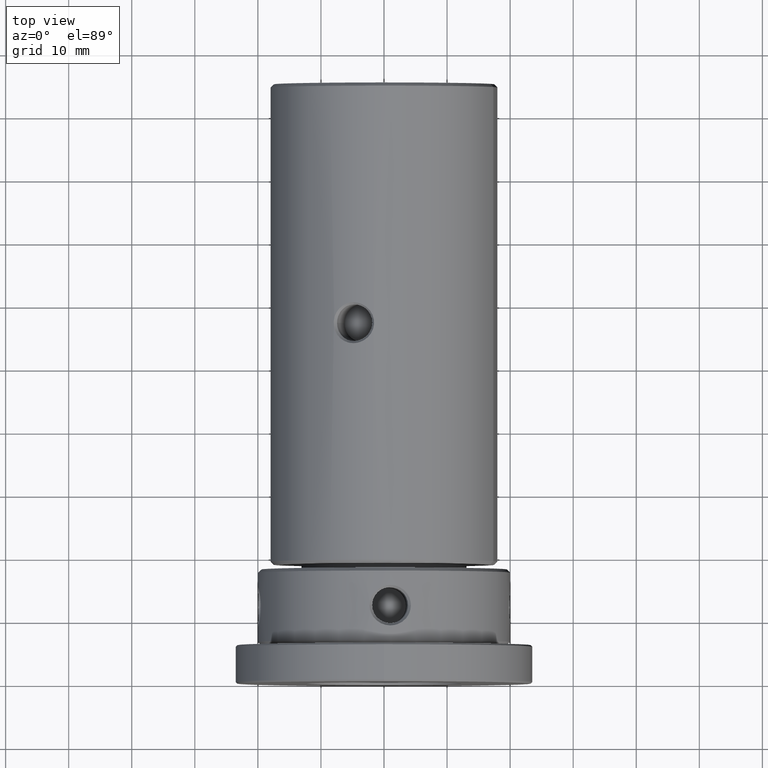
[diagram: clean part render]
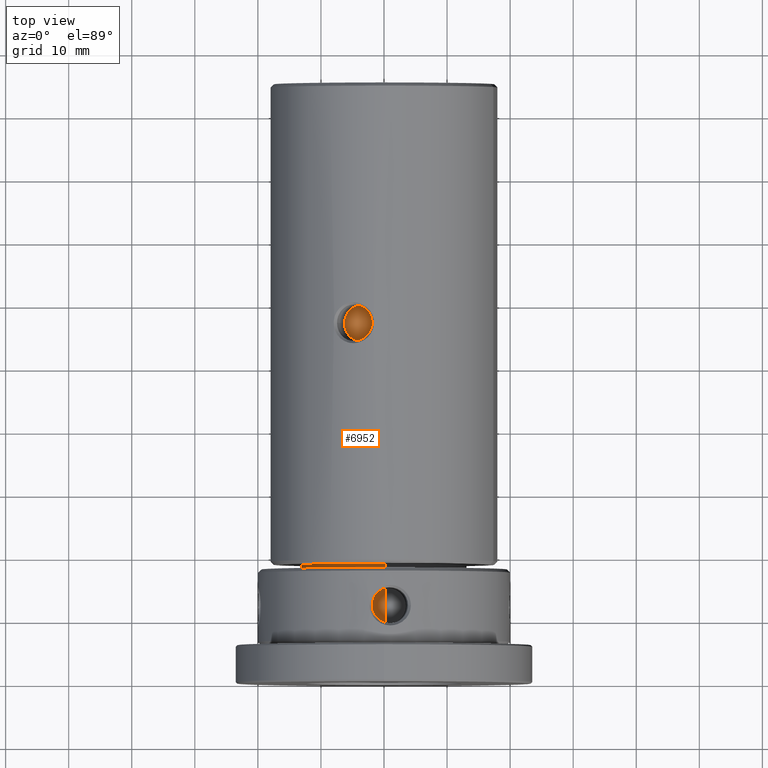
[diagram: same view with one face highlighted and labeled with its STEP entity id]
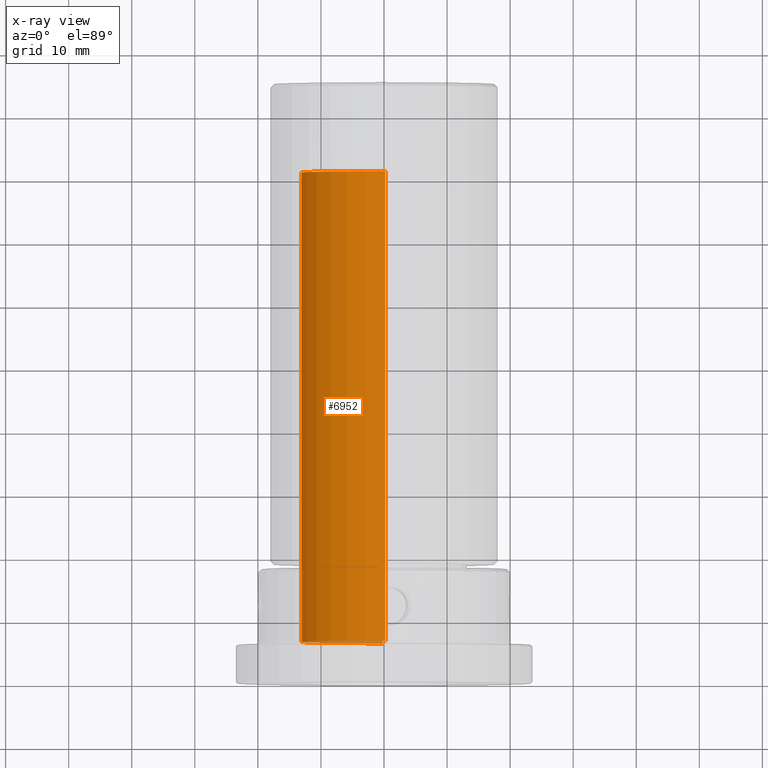
[diagram: x-ray of the same camera — body ghosted, the highlighted face saturated]
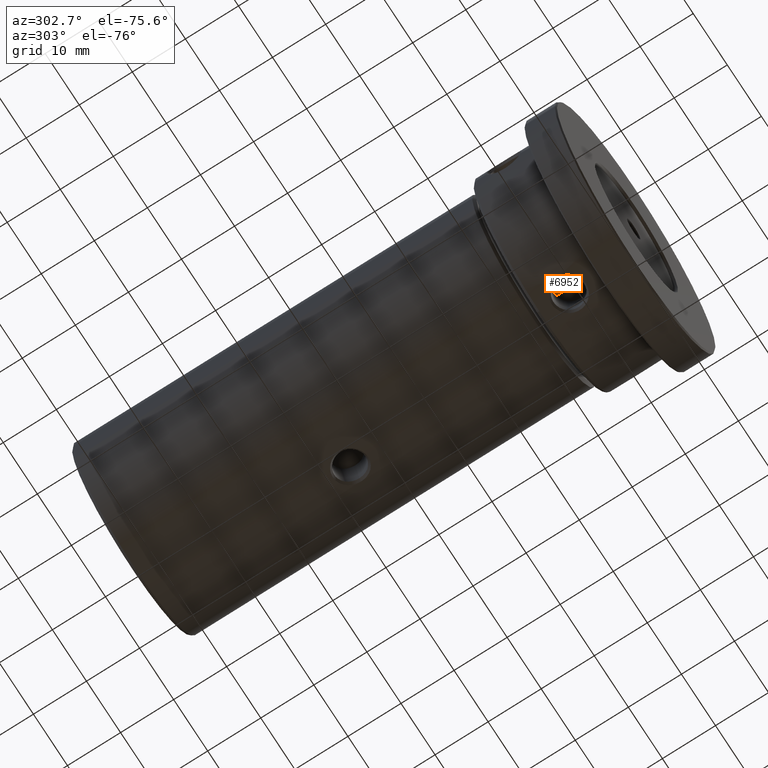
[diagram: same view with one face highlighted and labeled with its STEP entity id]
A machine part, top view. The second image highlights one B-rep face of the part: STEP entity #6952.
The next image is the same camera in x-ray: the body ghosted, the highlighted face saturated — about 1% of this face is hidden behind the body in this view.
A second angle (auxiliary view) of the same face is appended — the face is thin or edge-on in the first view.
In plain terms, the highlighted cylindrical surface (partial cylindrical patch) has radius 13.1445 mm, axis along (-0, -1, 0).
Its self-contained STEP definition (entity closure, byte-faithful):
#518 = VERTEX_POINT ( 'NONE', #12066 ) ;
#544 = DIRECTION ( 'NONE',  ( -0.000000000000000000, -1.000000000000000000, -0.000000000000000000 ) ) ;
#920 = CIRCLE ( 'NONE', #5842, 13.14450000000000074 ) ;
#1344 = VERTEX_POINT ( 'NONE', #1345 ) ;
#1345 = CARTESIAN_POINT ( 'NONE',  ( 0.000000000000000000, -37.21999999999991360, -13.14450000000000074 ) ) ;
#1471 = CYLINDRICAL_SURFACE ( 'NONE', #2619, 13.14450000000000074 ) ;
#1508 = ORIENTED_EDGE ( 'NONE', *, *, #6629, .T. ) ;
#1760 = CARTESIAN_POINT ( 'NONE',  ( 0.000000000000000000, 37.22000000000002018, -13.14450000000000074 ) ) ;
#2262 = DIRECTION ( 'NONE',  ( 0.000000000000000000, 0.000000000000000000, -1.000000000000000000 ) ) ;
#2619 = AXIS2_PLACEMENT_3D ( 'NONE', #5267, #544, #2262 ) ;
#2666 = EDGE_CURVE ( 'NONE', #1344, #518, #920, .T. ) ;
#3262 = VECTOR ( 'NONE', #7696, 1000.000000000000000 ) ;
#3693 = DIRECTION ( 'NONE',  ( -0.000000000000000000, -1.000000000000000000, -0.000000000000000000 ) ) ;
#3901 = DIRECTION ( 'NONE',  ( 0.000000000000000000, 0.000000000000000000, 1.000000000000000000 ) ) ;
#3933 = EDGE_CURVE ( 'NONE', #4786, #4567, #11489, .T. ) ;
#4567 = VERTEX_POINT ( 'NONE', #1760 ) ;
#4734 = LINE ( 'NONE', #7820, #3262 ) ;
#4786 = VERTEX_POINT ( 'NONE', #9044 ) ;
#5032 = FACE_OUTER_BOUND ( 'NONE', #9310, .T. ) ;
#5211 = EDGE_CURVE ( 'NONE', #4786, #518, #4734, .T. ) ;
#5267 = CARTESIAN_POINT ( 'NONE',  ( 0.000000000000000000, 37.71999999999999886, 0.000000000000000000 ) ) ;
#5410 = ORIENTED_EDGE ( 'NONE', *, *, #5211, .F. ) ;
#5416 = CARTESIAN_POINT ( 'NONE',  ( 0.000000000000000000, 37.71999999999999886, -13.14450000000000074 ) ) ;
#5842 = AXIS2_PLACEMENT_3D ( 'NONE', #8822, #8764, #3901 ) ;
#6629 = EDGE_CURVE ( 'NONE', #4567, #1344, #12101, .T. ) ;
#6816 = DIRECTION ( 'NONE',  ( 0.000000000000000000, 0.000000000000000000, 1.000000000000000000 ) ) ;
#6952 = ADVANCED_FACE ( 'NONE', ( #5032 ), #1471, .T. ) ;
#6963 = ORIENTED_EDGE ( 'NONE', *, *, #3933, .T. ) ;
#6989 = CARTESIAN_POINT ( 'NONE',  ( 0.000000000000000000, 37.22000000000002018, 0.000000000000000000 ) ) ;
#7696 = DIRECTION ( 'NONE',  ( -0.000000000000000000, -1.000000000000000000, -0.000000000000000000 ) ) ;
#7820 = CARTESIAN_POINT ( 'NONE',  ( 1.609736985139238045E-15, 37.71999999999999886, 13.14450000000000074 ) ) ;
#7870 = DIRECTION ( 'NONE',  ( 0.000000000000000000, -1.000000000000000000, 0.000000000000000000 ) ) ;
#8209 = ORIENTED_EDGE ( 'NONE', *, *, #2666, .T. ) ;
#8756 = AXIS2_PLACEMENT_3D ( 'NONE', #6989, #7870, #6816 ) ;
#8764 = DIRECTION ( 'NONE',  ( -0.000000000000000000, 1.000000000000000000, -0.000000000000000000 ) ) ;
#8822 = CARTESIAN_POINT ( 'NONE',  ( 0.000000000000000000, -37.21999999999991360, 0.000000000000000000 ) ) ;
#8890 = VECTOR ( 'NONE', #3693, 1000.000000000000000 ) ;
#9044 = CARTESIAN_POINT ( 'NONE',  ( 1.609736985139238045E-15, 37.22000000000002018, 13.14450000000000074 ) ) ;
#9310 = EDGE_LOOP ( 'NONE', ( #5410, #6963, #1508, #8209 ) ) ;
#11489 = CIRCLE ( 'NONE', #8756, 13.14450000000000074 ) ;
#12066 = CARTESIAN_POINT ( 'NONE',  ( 1.609736985139238045E-15, -37.21999999999991360, 13.14450000000000074 ) ) ;
#12101 = LINE ( 'NONE', #5416, #8890 ) ;